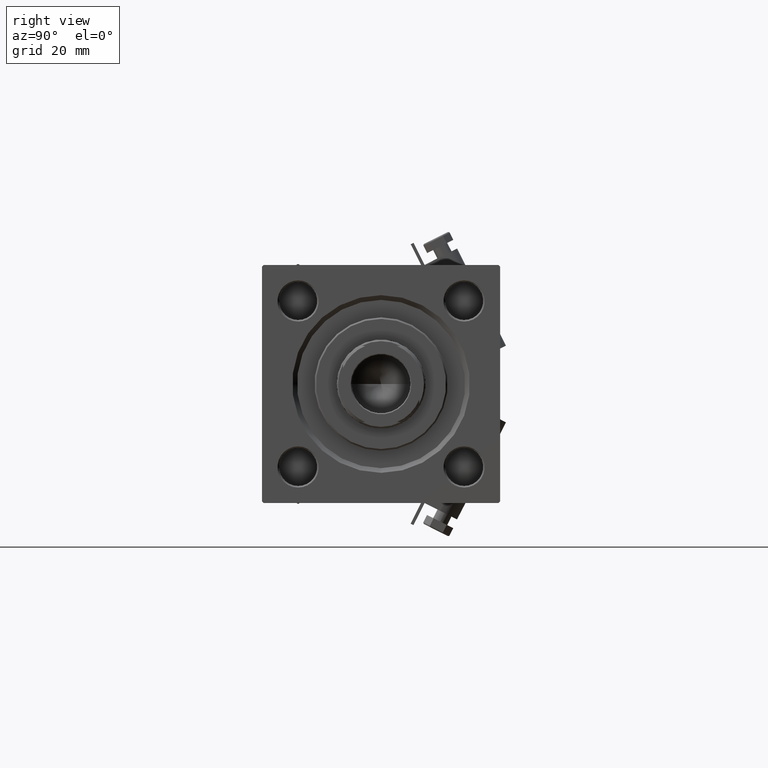
[diagram: clean part render]
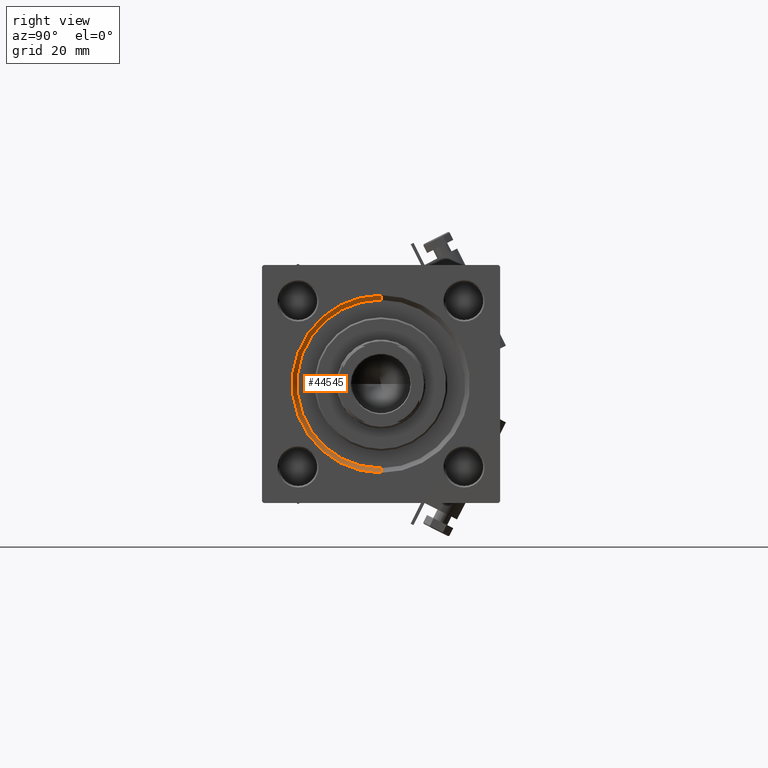
[diagram: same view with one face highlighted and labeled with its STEP entity id]
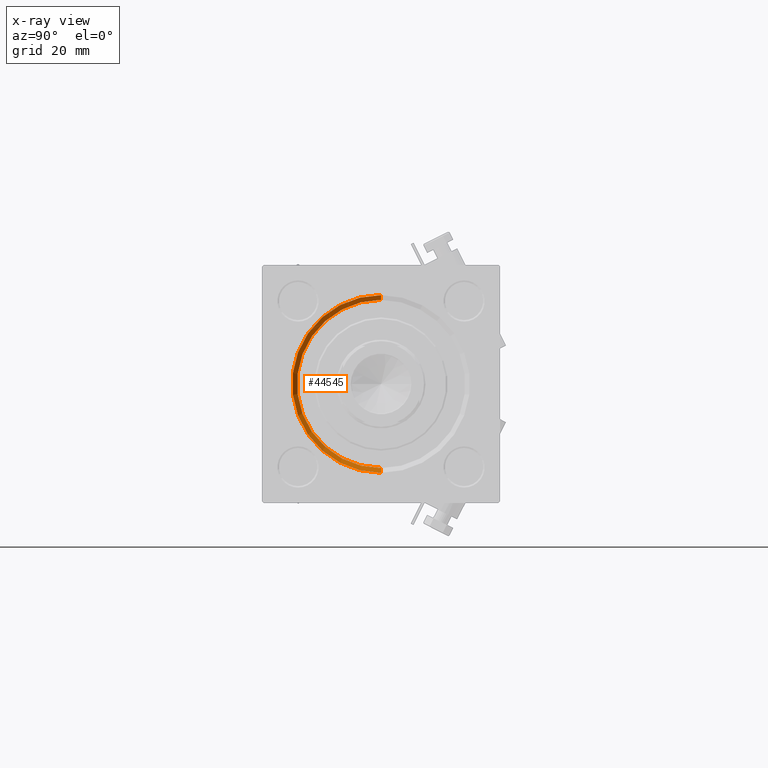
[diagram: x-ray of the same camera — body ghosted, the highlighted face saturated]
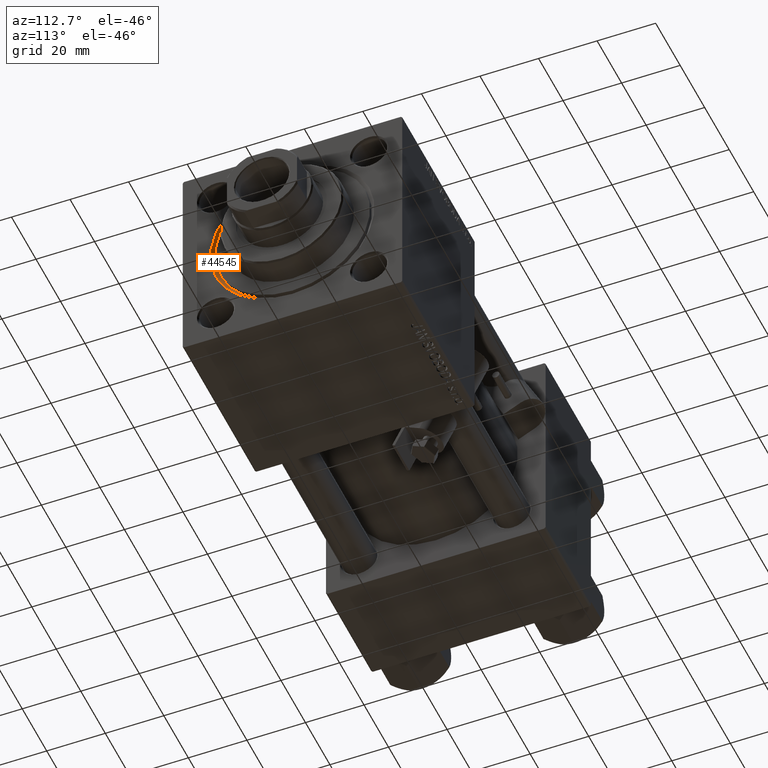
[diagram: same view with one face highlighted and labeled with its STEP entity id]
A machine part, right view. The second image highlights one B-rep face of the part: STEP entity #44545.
The next image is the same camera in x-ray: the body ghosted, the highlighted face saturated — about 0% of this face is hidden behind the body in this view.
A second angle (auxiliary view) of the same face is appended — the face is thin or edge-on in the first view.
In plain terms, the highlighted conical surface has half-angle 45 deg.
Its self-contained STEP definition (entity closure, byte-faithful):
#1245 = EDGE_CURVE ( 'NONE', #8504, #23121, #6744, .T. ) ;
#2706 = CARTESIAN_POINT ( 'NONE',  ( 152.5000000000000568, 3.245314017740486554E-15, 26.50000000000000355 ) ) ;
#3462 = DIRECTION ( 'NONE',  ( 1.000000000000000000, 0.000000000000000000, 0.000000000000000000 ) ) ;
#4176 = VERTEX_POINT ( 'NONE', #37283 ) ;
#6073 = ORIENTED_EDGE ( 'NONE', *, *, #24554, .F. ) ;
#6744 = CIRCLE ( 'NONE', #13381, 27.99999999999999645 ) ;
#7262 = AXIS2_PLACEMENT_3D ( 'NONE', #39451, #3462, #11228 ) ;
#7337 = FACE_OUTER_BOUND ( 'NONE', #48960, .T. ) ;
#8504 = VERTEX_POINT ( 'NONE', #25053 ) ;
#10727 = DIRECTION ( 'NONE',  ( 0.7071067811865361374, 8.659560562355073374E-17, 0.7071067811865588970 ) ) ;
#10776 = VECTOR ( 'NONE', #10727, 1000.000000000000114 ) ;
#11228 = DIRECTION ( 'NONE',  ( 0.000000000000000000, 0.000000000000000000, -1.000000000000000000 ) ) ;
#12153 = ORIENTED_EDGE ( 'NONE', *, *, #40549, .F. ) ;
#13381 = AXIS2_PLACEMENT_3D ( 'NONE', #21179, #29976, #28964 ) ;
#15567 = VECTOR ( 'NONE', #34045, 1000.000000000000114 ) ;
#15575 = VERTEX_POINT ( 'NONE', #24299 ) ;
#16957 = CIRCLE ( 'NONE', #39280, 26.50000000000000355 ) ;
#19651 = CONICAL_SURFACE ( 'NONE', #7262, 26.50000000000000355, 0.7853981633974644883 ) ;
#21179 = CARTESIAN_POINT ( 'NONE',  ( 154.0000000000000000, 0.000000000000000000, 0.000000000000000000 ) ) ;
#23121 = VERTEX_POINT ( 'NONE', #30716 ) ;
#24299 = CARTESIAN_POINT ( 'NONE',  ( 152.5000000000000568, 3.245314017740486554E-15, 26.50000000000000355 ) ) ;
#24554 = EDGE_CURVE ( 'NONE', #4176, #8504, #45193, .T. ) ;
#25053 = CARTESIAN_POINT ( 'NONE',  ( 154.0000000000000000, 0.000000000000000000, -27.99999999999999645 ) ) ;
#26272 = CARTESIAN_POINT ( 'NONE',  ( 152.5000000000000568, 0.000000000000000000, 0.000000000000000000 ) ) ;
#28964 = DIRECTION ( 'NONE',  ( 0.000000000000000000, 0.000000000000000000, 1.000000000000000000 ) ) ;
#29976 = DIRECTION ( 'NONE',  ( -1.000000000000000000, -0.000000000000000000, 0.000000000000000000 ) ) ;
#30403 = DIRECTION ( 'NONE',  ( 0.000000000000000000, 0.000000000000000000, 1.000000000000000000 ) ) ;
#30716 = CARTESIAN_POINT ( 'NONE',  ( 154.0000000000000000, 3.429011037612588881E-15, 27.99999999999999645 ) ) ;
#34045 = DIRECTION ( 'NONE',  ( 0.7071067811865361374, 0.000000000000000000, -0.7071067811865588970 ) ) ;
#37283 = CARTESIAN_POINT ( 'NONE',  ( 152.5000000000000568, 0.000000000000000000, -26.50000000000000355 ) ) ;
#38446 = LINE ( 'NONE', #2706, #10776 ) ;
#38967 = ORIENTED_EDGE ( 'NONE', *, *, #50695, .T. ) ;
#39280 = AXIS2_PLACEMENT_3D ( 'NONE', #26272, #42059, #30403 ) ;
#39451 = CARTESIAN_POINT ( 'NONE',  ( 152.5000000000000568, 0.000000000000000000, 0.000000000000000000 ) ) ;
#40549 = EDGE_CURVE ( 'NONE', #15575, #4176, #16957, .T. ) ;
#41122 = ORIENTED_EDGE ( 'NONE', *, *, #1245, .F. ) ;
#41311 = CARTESIAN_POINT ( 'NONE',  ( 152.5000000000000568, 0.000000000000000000, -26.50000000000000355 ) ) ;
#42059 = DIRECTION ( 'NONE',  ( 1.000000000000000000, 0.000000000000000000, 0.000000000000000000 ) ) ;
#44545 = ADVANCED_FACE ( 'NONE', ( #7337 ), #19651, .F. ) ;
#45193 = LINE ( 'NONE', #41311, #15567 ) ;
#48960 = EDGE_LOOP ( 'NONE', ( #12153, #38967, #41122, #6073 ) ) ;
#50695 = EDGE_CURVE ( 'NONE', #15575, #23121, #38446, .T. ) ;